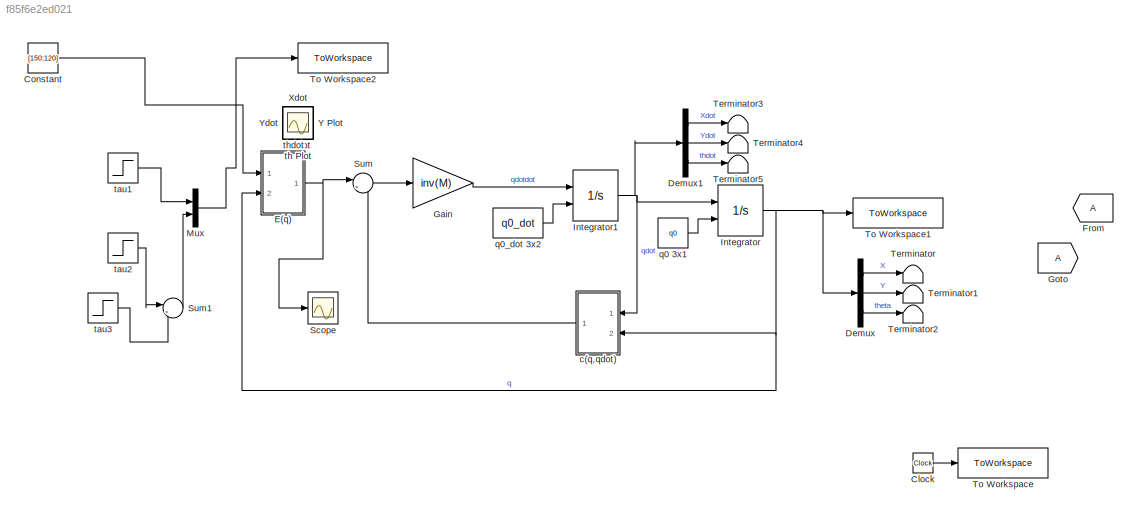
MODEL slx_f85f6e2ed021
KIND model
CONFIG AbsTol = auto
CONFIG EnableMultiTasking = off
CONFIG FixedStep = auto
CONFIG MaxStep = auto
CONFIG MinStep = auto
CONFIG RelTol = 1e-3
CONFIG SampleTimeConstraint = Unconstrained
CONFIG SolverName = VariableStepAuto
CONFIG StartTime = 0.0
CONFIG StopTime = 5
BLOCK [Clock] Clock
BLOCK [Constant] Constant
  Value = [150;120]
BLOCK [Demux] Demux
  Outputs = 3
  Ports = [1, 3]
BLOCK [Demux] Demux1
  Outputs = 3
  Ports = [1, 3]
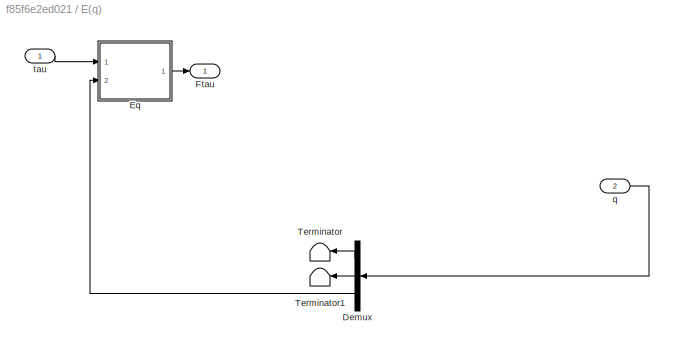
BLOCK [SubSystem] E(q)
  Ports = [2, 1]
  RequestExecContextInheritance = off
BLOCK [Demux] E(q)/Demux
  Outputs = 3
  Ports = [1, 3]
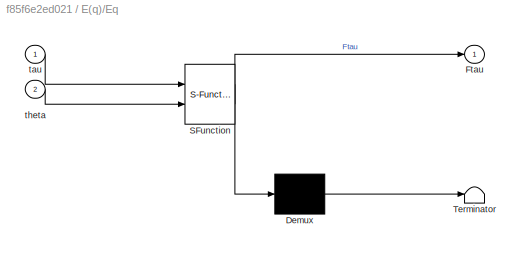
BLOCK [SubSystem] E(q)/Eq
  ErrorFcn = Stateflow.Translate.translate
  PermitHierarchicalResolution = ExplicitOnly
  Ports = [2, 1]
  RequestExecContextInheritance = off
  SFBlockType = MATLAB Function
  TreatAsAtomicUnit = on
BLOCK [Demux] E(q)/Eq/ Demux 
  Outputs = 1
  Ports = [1, 1]
BLOCK [S-Function] E(q)/Eq/ SFunction 
  EnableBusSupport = on
  FunctionName = sf_sfun
  Parameters = r,t
  PortCounts = [2 2]
  Ports = [2, 2]
  SFcnIsStateOwnerBlock = off
  SFunctionDeploymentMode = off
  Tag = Stateflow S-Function 1
BLOCK [Terminator] E(q)/Eq/ Terminator 
BLOCK [Outport] E(q)/Eq/Ftau
BLOCK [Inport] E(q)/Eq/tau
BLOCK [Inport] E(q)/Eq/theta
  Port = 2
BLOCK [Outport] E(q)/Ftau
BLOCK [Terminator] E(q)/Terminator
BLOCK [Terminator] E(q)/Terminator1
BLOCK [Inport] E(q)/q
  Port = 2
BLOCK [Inport] E(q)/tau
BLOCK [From] From
  Commented = on
BLOCK [Gain] Gain
  Gain = inv(M)
  Multiplication = Matrix(K*u)
BLOCK [Goto] Goto
  Commented = on
BLOCK [Integrator] Integrator
  InitialConditionSource = external
  Ports = [2, 1]
BLOCK [Integrator] Integrator1
  InitialConditionSource = external
  Ports = [2, 1]
BLOCK [Mux] Mux
  Commented = on
  DisplayOption = bar
  Inputs = 2
  Ports = [2, 1]
BLOCK [Scope] Scope
  Floating = off
  NumInputPorts = 1
  Ports = [1]
  ScopeSpecificationString = Simulink.scopes.TimeScopeBlockCfg('CurrentConfiguration', extmgr.ConfigurationSet(extmgr.Configuration('Core','General UI',true),extmgr.Configuration('Core','Source UI',true),extmgr.Configuration('Sources','WiredSimulink',true,'DataLoggingVariableName','ScopeData6'),extmgr.Configuration('Visuals','Time Domain',true,'SerializedDisplays',{struct('MinYLimReal','-1499.9825','MaxYLimReal','1500.00000',...<+1445ch>
BLOCK [Sum] Sum
  Inputs = |+-
  Ports = [2, 1]
BLOCK [Sum] Sum1
  Commented = on
  Inputs = |++
  Ports = [2, 1]
BLOCK [Terminator] Terminator
BLOCK [Terminator] Terminator1
BLOCK [Terminator] Terminator2
BLOCK [Terminator] Terminator3
BLOCK [Terminator] Terminator4
BLOCK [Terminator] Terminator5
BLOCK [ToWorkspace] To Workspace
  FixptAsFi = on
  MaxDataPoints = inf
  Ports = [1]
  SampleTime = -1
  VariableName = t
BLOCK [ToWorkspace] To Workspace1
  FixptAsFi = on
  MaxDataPoints = inf
  Ports = [1]
  SampleTime = -1
  VariableName = q
BLOCK [ToWorkspace] To Workspace2
  FixptAsFi = on
  MaxDataPoints = inf
  Ports = [1]
  SampleTime = -1
  SaveFormat = Timeseries
  VariableName = tau_in
BLOCK [Scope] X Plot
  Floating = off
  IOType = viewer
  NumInputPorts = 1
  Ports = []
  ScopeSpecificationString = Simulink.scopes.TimeScopeBlockCfg('CurrentConfiguration', extmgr.ConfigurationSet(extmgr.Configuration('Core','General UI',true),extmgr.Configuration('Core','Source UI',true),extmgr.Configuration('Sources','WiredSimulink',true),extmgr.Configuration('Visuals','Time Domain',true,'SerializedDisplays',{struct('MinYLimReal','-0.31836','MaxYLimReal','2.8652','YLabelReal','','MinYLimMag','0.00000','MaxYL...<+1361ch>
BLOCK [Scope] Xdot
  Floating = off
  IOType = viewer
  NumInputPorts = 1
  Ports = []
  ScopeSpecificationString = Simulink.scopes.TimeScopeBlockCfg('CurrentConfiguration', extmgr.ConfigurationSet(extmgr.Configuration('Core','General UI',true),extmgr.Configuration('Core','Source UI',true),extmgr.Configuration('Sources','WiredSimulink',true,'DataLoggingVariableName','ScopeData3'),extmgr.Configuration('Visuals','Time Domain',true,'SerializedDisplays',{struct('MinYLimReal','-0.36992','MaxYLimReal','3.32927','YLab...<+1388ch>
BLOCK [Scope] Y Plot
  Floating = off
  IOType = viewer
  NumInputPorts = 1
  Ports = []
  ScopeSpecificationString = Simulink.scopes.TimeScopeBlockCfg('CurrentConfiguration', extmgr.ConfigurationSet(extmgr.Configuration('Core','General UI',true),extmgr.Configuration('Core','Source UI',true),extmgr.Configuration('Sources','WiredSimulink',true,'DataLoggingVariableName','ScopeData1'),extmgr.Configuration('Visuals','Time Domain',true,'SerializedDisplays',{struct('MinYLimReal','-13.21338','MaxYLimReal','1.46815','YLa...<+1389ch>
BLOCK [Scope] Ydot
  Floating = off
  IOType = viewer
  NumInputPorts = 1
  Ports = []
  ScopeSpecificationString = Simulink.scopes.TimeScopeBlockCfg('CurrentConfiguration', extmgr.ConfigurationSet(extmgr.Configuration('Core','General UI',true),extmgr.Configuration('Core','Source UI',true),extmgr.Configuration('Sources','WiredSimulink',true,'DataLoggingVariableName','ScopeData4'),extmgr.Configuration('Visuals','Time Domain',true,'SerializedDisplays',{struct('MinYLimReal','-3.94203','MaxYLimReal','0.438','YLabel...<+1359ch>
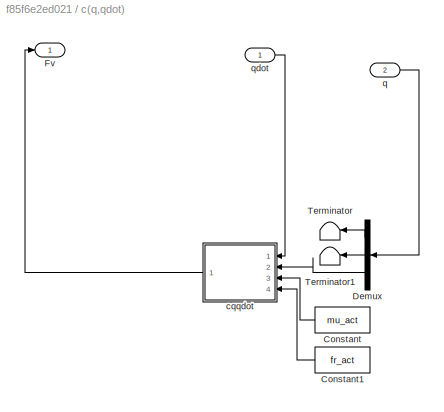
BLOCK [SubSystem] c(q,qdot)
  Ports = [2, 1]
  RequestExecContextInheritance = off
BLOCK [Constant] c(q,qdot)/Constant
  Value = mu_act
BLOCK [Constant] c(q,qdot)/Constant1
  Value = fr_act
BLOCK [Demux] c(q,qdot)/Demux
  Outputs = 3
  Ports = [1, 3]
BLOCK [Outport] c(q,qdot)/Fv
BLOCK [Terminator] c(q,qdot)/Terminator
BLOCK [Terminator] c(q,qdot)/Terminator1
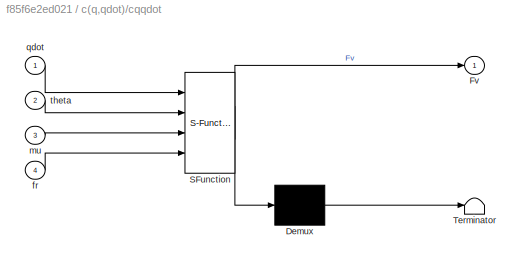
BLOCK [SubSystem] c(q,qdot)/cqqdot
  ErrorFcn = Stateflow.Translate.translate
  PermitHierarchicalResolution = ExplicitOnly
  Ports = [4, 1]
  RequestExecContextInheritance = off
  SFBlockType = MATLAB Function
  TreatAsAtomicUnit = on
BLOCK [Demux] c(q,qdot)/cqqdot/ Demux 
  Outputs = 1
  Ports = [1, 1]
BLOCK [S-Function] c(q,qdot)/cqqdot/ SFunction 
  EnableBusSupport = on
  FunctionName = sf_sfun
  Parameters = a,b,g,m,t
  PortCounts = [4 2]
  Ports = [4, 2]
  SFcnIsStateOwnerBlock = off
  SFunctionDeploymentMode = off
  Tag = Stateflow S-Function 2
BLOCK [Terminator] c(q,qdot)/cqqdot/ Terminator 
BLOCK [Outport] c(q,qdot)/cqqdot/Fv
BLOCK [Inport] c(q,qdot)/cqqdot/fr
  Port = 4
BLOCK [Inport] c(q,qdot)/cqqdot/mu
  Port = 3
BLOCK [Inport] c(q,qdot)/cqqdot/qdot
BLOCK [Inport] c(q,qdot)/cqqdot/theta
  Port = 2
BLOCK [Inport] c(q,qdot)/q
  Port = 2
BLOCK [Inport] c(q,qdot)/qdot
BLOCK [Constant] q0 3x1
  Value = q0
BLOCK [Constant] q0_dot 3x2
  Value = q0_dot
BLOCK [Step] tau1
  After = 120
  Commented = on
  SampleTime = 0
BLOCK [Step] tau2
  After = 120
  Commented = on
  SampleTime = 0
BLOCK [Step] tau3
  After = 60
  Commented = on
  SampleTime = 0
  Time = 2
BLOCK [Scope] th Plot
  Floating = off
  IOType = viewer
  NumInputPorts = 1
  Ports = []
  ScopeSpecificationString = Simulink.scopes.TimeScopeBlockCfg('CurrentConfiguration', extmgr.ConfigurationSet(extmgr.Configuration('Core','General UI',true),extmgr.Configuration('Core','Source UI',true),extmgr.Configuration('Sources','WiredSimulink',true,'DataLoggingVariableName','ScopeData2'),extmgr.Configuration('Visuals','Time Domain',true,'SerializedDisplays',{struct('MinYLimReal','-252.45085','MaxYLimReal','28.05009','Y...<+1401ch>
BLOCK [Scope] thdot
  Floating = off
  IOType = viewer
  NumInputPorts = 1
  Ports = []
  ScopeSpecificationString = Simulink.scopes.TimeScopeBlockCfg('CurrentConfiguration', extmgr.ConfigurationSet(extmgr.Configuration('Core','General UI',true),extmgr.Configuration('Core','Source UI',true),extmgr.Configuration('Sources','WiredSimulink',true,'DataLoggingVariableName','ScopeData5'),extmgr.Configuration('Visuals','Time Domain',true,'SerializedDisplays',{struct('MinYLimReal','-1.00000','MaxYLimReal','1.00000','YLab...<+1364ch>
LINE Clock:1 -> To Workspace:1
LINE Constant:1 -> E(q):1
LINE Demux1:1 -> Terminator3:1
LINE Demux1:2 -> Terminator4:1
LINE Demux1:3 -> Terminator5:1
LINE Demux:1 -> Terminator:1
LINE Demux:2 -> Terminator1:1
LINE Demux:3 -> Terminator2:1
LINE E(q)/Demux:1 -> E(q)/Terminator:1
LINE E(q)/Demux:2 -> E(q)/Terminator1:1
LINE E(q)/Demux:3 -> E(q)/Eq:2
LINE E(q)/Eq:1 -> E(q)/Ftau:1
LINE E(q)/q:1 -> E(q)/Demux:1
LINE E(q)/tau:1 -> E(q)/Eq:1
NET E(q):1 -> Scope:1, Sum:1
LINE Gain:1 -> Integrator1:1
NET Integrator1:1 -> Demux1:1, Integrator:1, c(q,qdot):1
NET Integrator:1 -> Demux:1, E(q):2, To Workspace1:1, c(q,qdot):2
LINE Mux:1 -> To Workspace2:1
LINE Sum1:1 -> Mux:2
LINE Sum:1 -> Gain:1
LINE c(q,qdot)/Constant1:1 -> c(q,qdot)/cqqdot:4
LINE c(q,qdot)/Constant:1 -> c(q,qdot)/cqqdot:3
LINE c(q,qdot)/Demux:1 -> c(q,qdot)/Terminator:1
LINE c(q,qdot)/Demux:2 -> c(q,qdot)/Terminator1:1
LINE c(q,qdot)/Demux:3 -> c(q,qdot)/cqqdot:2
LINE c(q,qdot)/cqqdot:1 -> c(q,qdot)/Fv:1
LINE c(q,qdot)/q:1 -> c(q,qdot)/Demux:1
LINE c(q,qdot)/qdot:1 -> c(q,qdot)/cqqdot:1
LINE c(q,qdot):1 -> Sum:2
LINE q0 3x1:1 -> Integrator:2
LINE q0_dot 3x2:1 -> Integrator1:2
LINE tau1:1 -> Mux:1
LINE tau2:1 -> Sum1:1
LINE tau3:1 -> Sum1:2
note: NET lines group one-source signal fan-out (src -> all destinations, sorted); 1:1 wires keep LINE
CHART E(q)/Eq states=1 transitions=1
  STATE_LABEL 'eML_blk_kernel()'
  STATE_LABEL 'SCRIPT:\nfunction Ftau = Eq(tau,theta,t, r)\nFtau=[cos(theta)/r cos(theta)/r;...\n   sin(theta)/r sin(theta)/r;...\n   t/r -t/r]*tau;\n'
CHART c(q,qdot)/cqqdot states=1 transitions=1
  STATE_LABEL 'eML_blk_kernel()'
  STATE_LABEL 'SCRIPT:\nfunction Fv = cqqdot(qdot,theta,mu,fr,a, b, t, g, m)\nXdot=qdot(1);\nYdot=qdot(2);\nthdot=qdot(3);\n\n%Rth = [cos(theta) -sin(theta);sin(theta) cos(theta)];\n\nxdot =  Xdot*cos(theta)+Ydot*sin(theta);\nydot = -Xdot*sin(theta)+Ydot*cos(theta);\n\nx1dot = xdot-t*thdot;\nx2dot = xdot+t*thdot;\ny1dot = ydot-a*thdot;\ny3dot = ydot+b*thdot;\n\nRx = fr*m*g*0.5*(sign(x1dot)+sign(x2dot));\nFy = mu*m*g*(b*sign(y1do...<+204ch>'
CHART  states=0 transitions=0
CHART  states=0 transitions=0
